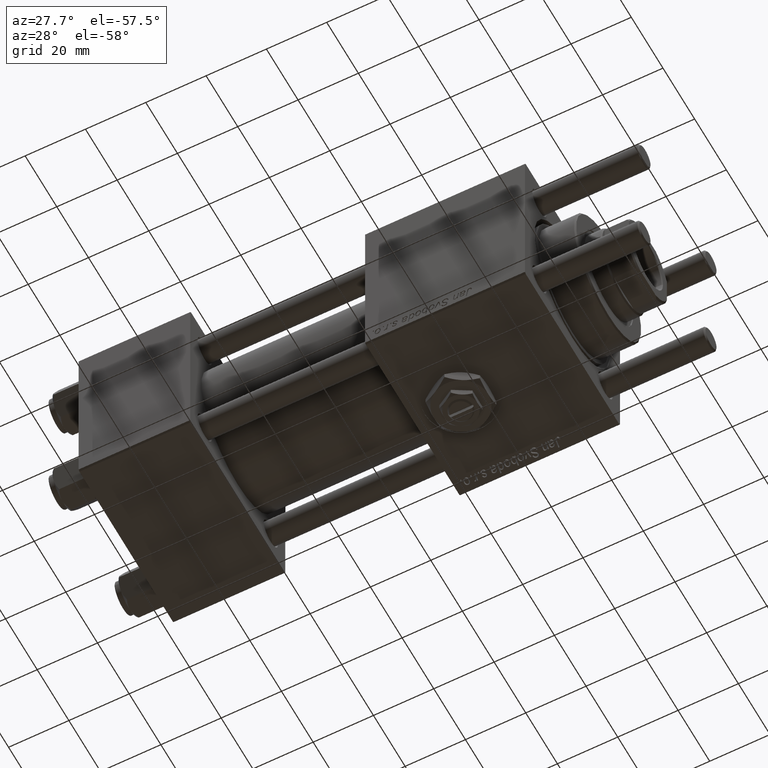
[diagram: clean part render]
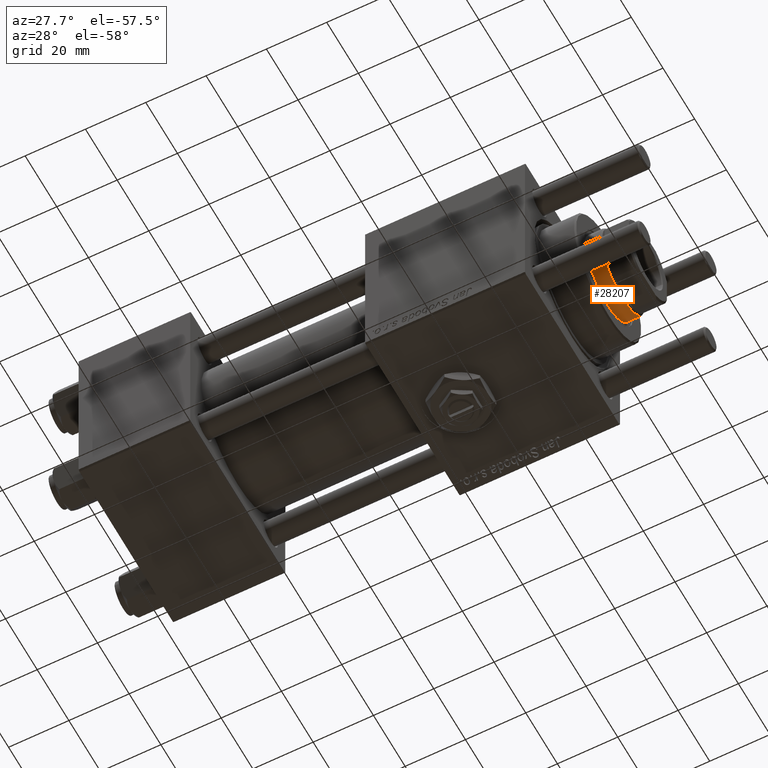
[diagram: same view with one face highlighted and labeled with its STEP entity id]
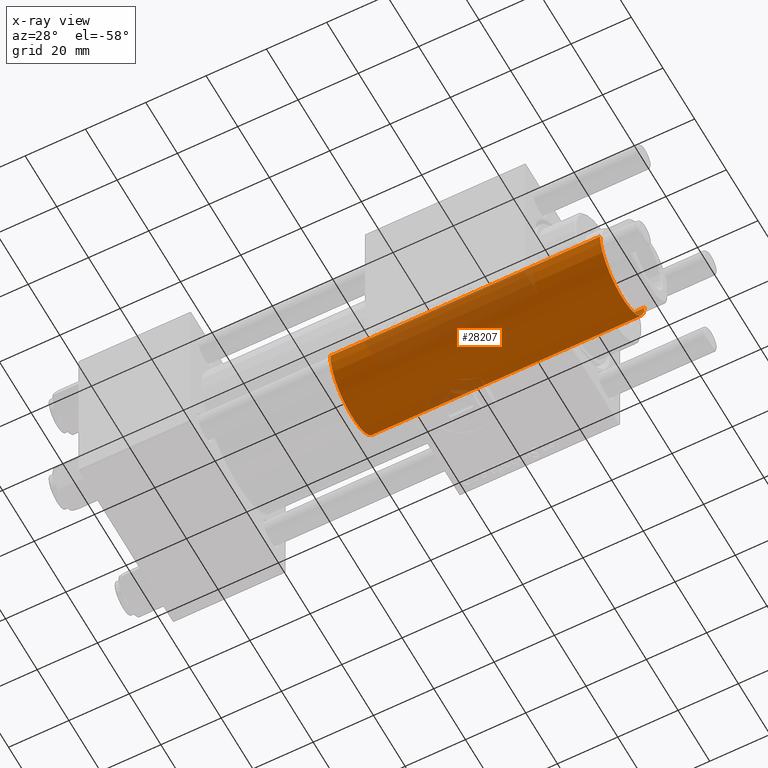
[diagram: x-ray of the same camera — body ghosted, the highlighted face saturated]
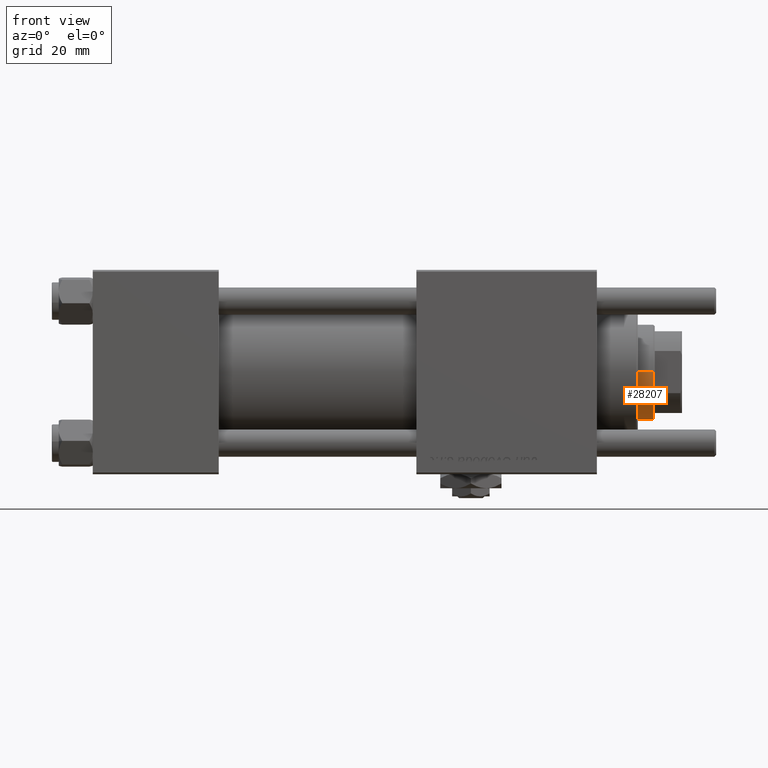
[diagram: same view with one face highlighted and labeled with its STEP entity id]
A machine part, auxiliary view. The second image highlights one B-rep face of the part: STEP entity #28207.
The next image is the same camera in x-ray: the body ghosted, the highlighted face saturated — about 24% of this face is hidden behind the body in this view.
A second angle (front view) of the same face is appended — the face is thin or edge-on in the first view.
In plain terms, the highlighted cylindrical surface (partial cylindrical patch) has radius 14 mm, axis along (-1, 0, 0).
Its self-contained STEP definition (entity closure, byte-faithful):
#182 = CARTESIAN_POINT ( 'NONE',  ( 0.000000000000000000, 0.000000000000000000, 128.0000000000000000 ) ) ;
#292 = EDGE_CURVE ( 'NONE', #33867, #33236, #15771, .T. ) ;
#2231 = VECTOR ( 'NONE', #29131, 1000.000000000000000 ) ;
#4611 = CYLINDRICAL_SURFACE ( 'NONE', #55774, 14.00000000000000178 ) ;
#7141 = VERTEX_POINT ( 'NONE', #14273 ) ;
#7916 = CARTESIAN_POINT ( 'NONE',  ( 0.000000000000000000, 0.000000000000000000, 127.5000000000000853 ) ) ;
#8758 = VERTEX_POINT ( 'NONE', #27981 ) ;
#9063 = EDGE_CURVE ( 'NONE', #33236, #8758, #36906, .T. ) ;
#11354 = AXIS2_PLACEMENT_3D ( 'NONE', #28491, #46526, #33488 ) ;
#11591 = ORIENTED_EDGE ( 'NONE', *, *, #9063, .T. ) ;
#13800 = DIRECTION ( 'NONE',  ( -1.000000000000000000, 0.000000000000000000, 0.000000000000000000 ) ) ;
#14273 = CARTESIAN_POINT ( 'NONE',  ( -14.00000000000000178, 0.000000000000000000, 127.5000000000000853 ) ) ;
#15771 = LINE ( 'NONE', #25239, #27190 ) ;
#22707 = CARTESIAN_POINT ( 'NONE',  ( 14.00000000000000178, 1.714505518806294441E-15, 127.5000000000000853 ) ) ;
#22708 = DIRECTION ( 'NONE',  ( -0.000000000000000000, -0.000000000000000000, -1.000000000000000000 ) ) ;
#24903 = EDGE_LOOP ( 'NONE', ( #39416, #50475, #11591, #30817 ) ) ;
#25239 = CARTESIAN_POINT ( 'NONE',  ( 14.00000000000000178, 1.714505518806294441E-15, 128.0000000000000000 ) ) ;
#26000 = DIRECTION ( 'NONE',  ( 1.000000000000000000, 0.000000000000000000, 0.000000000000000000 ) ) ;
#27190 = VECTOR ( 'NONE', #57196, 1000.000000000000000 ) ;
#27416 = AXIS2_PLACEMENT_3D ( 'NONE', #7916, #56192, #26000 ) ;
#27981 = CARTESIAN_POINT ( 'NONE',  ( -14.00000000000000178, 0.000000000000000000, 38.00000000000000000 ) ) ;
#28207 = ADVANCED_FACE ( 'NONE', ( #45180 ), #4611, .T. ) ;
#28491 = CARTESIAN_POINT ( 'NONE',  ( 0.000000000000000000, 0.000000000000000000, 38.00000000000000000 ) ) ;
#29131 = DIRECTION ( 'NONE',  ( -0.000000000000000000, -0.000000000000000000, -1.000000000000000000 ) ) ;
#30817 = ORIENTED_EDGE ( 'NONE', *, *, #30971, .F. ) ;
#30971 = EDGE_CURVE ( 'NONE', #7141, #8758, #46310, .T. ) ;
#33236 = VERTEX_POINT ( 'NONE', #42319 ) ;
#33488 = DIRECTION ( 'NONE',  ( 1.000000000000000000, 0.000000000000000000, 0.000000000000000000 ) ) ;
#33867 = VERTEX_POINT ( 'NONE', #22707 ) ;
#36906 = CIRCLE ( 'NONE', #11354, 14.00000000000000178 ) ;
#39416 = ORIENTED_EDGE ( 'NONE', *, *, #58598, .T. ) ;
#39715 = CIRCLE ( 'NONE', #27416, 14.00000000000000178 ) ;
#41868 = CARTESIAN_POINT ( 'NONE',  ( -14.00000000000000178, 0.000000000000000000, 128.0000000000000000 ) ) ;
#42319 = CARTESIAN_POINT ( 'NONE',  ( 14.00000000000000178, 1.714505518806294441E-15, 38.00000000000000000 ) ) ;
#45180 = FACE_OUTER_BOUND ( 'NONE', #24903, .T. ) ;
#46310 = LINE ( 'NONE', #41868, #2231 ) ;
#46526 = DIRECTION ( 'NONE',  ( 0.000000000000000000, 0.000000000000000000, 1.000000000000000000 ) ) ;
#50475 = ORIENTED_EDGE ( 'NONE', *, *, #292, .T. ) ;
#55774 = AXIS2_PLACEMENT_3D ( 'NONE', #182, #22708, #13800 ) ;
#56192 = DIRECTION ( 'NONE',  ( 0.000000000000000000, 0.000000000000000000, -1.000000000000000000 ) ) ;
#57196 = DIRECTION ( 'NONE',  ( -0.000000000000000000, -0.000000000000000000, -1.000000000000000000 ) ) ;
#58598 = EDGE_CURVE ( 'NONE', #7141, #33867, #39715, .T. ) ;